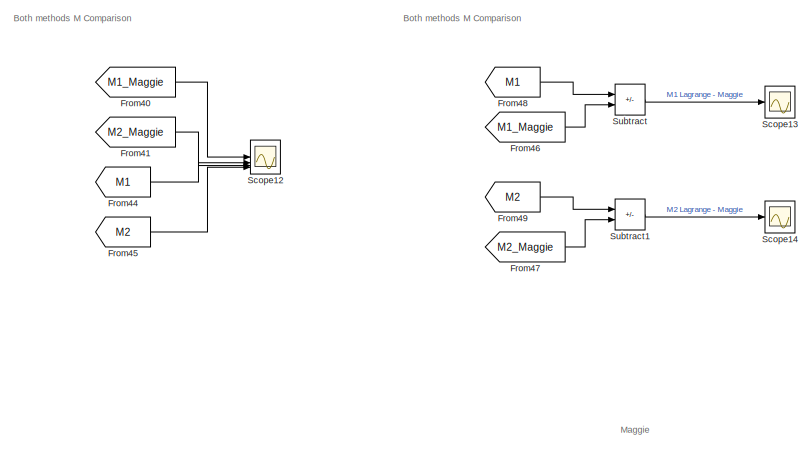
[diagram: root canvas - part 1/4, top right region]
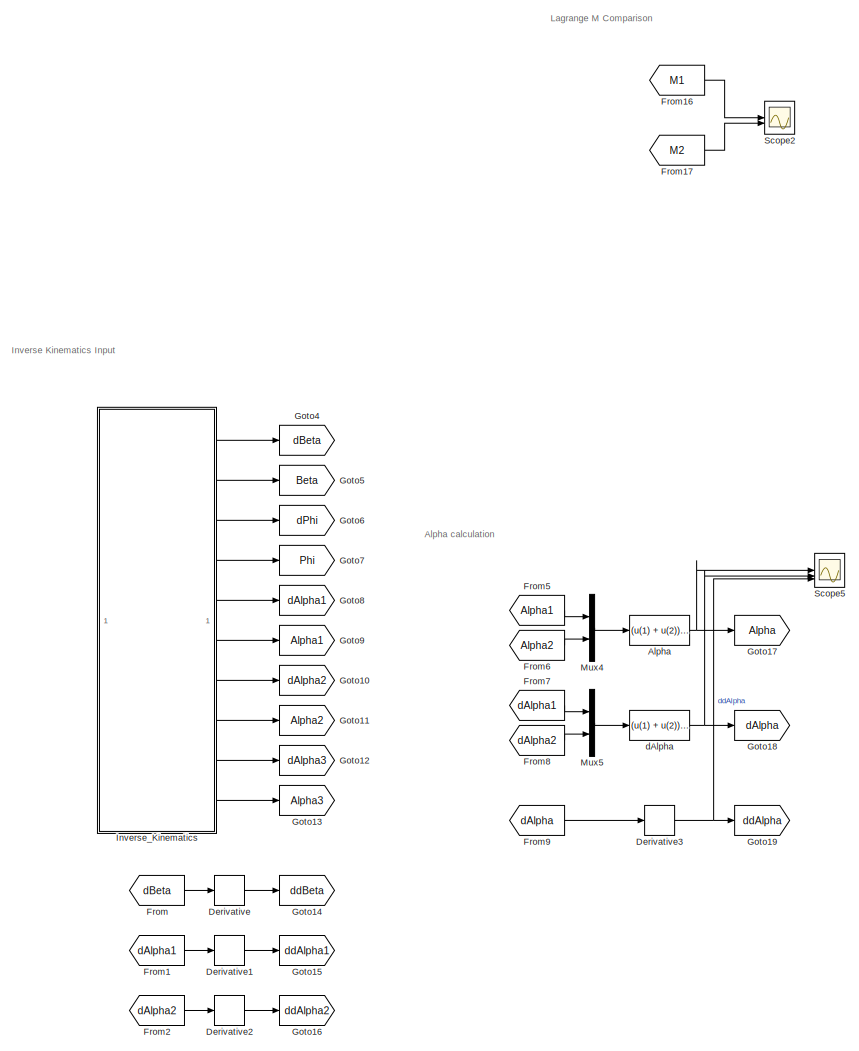
[diagram: root canvas - part 2/4, left side, full height]
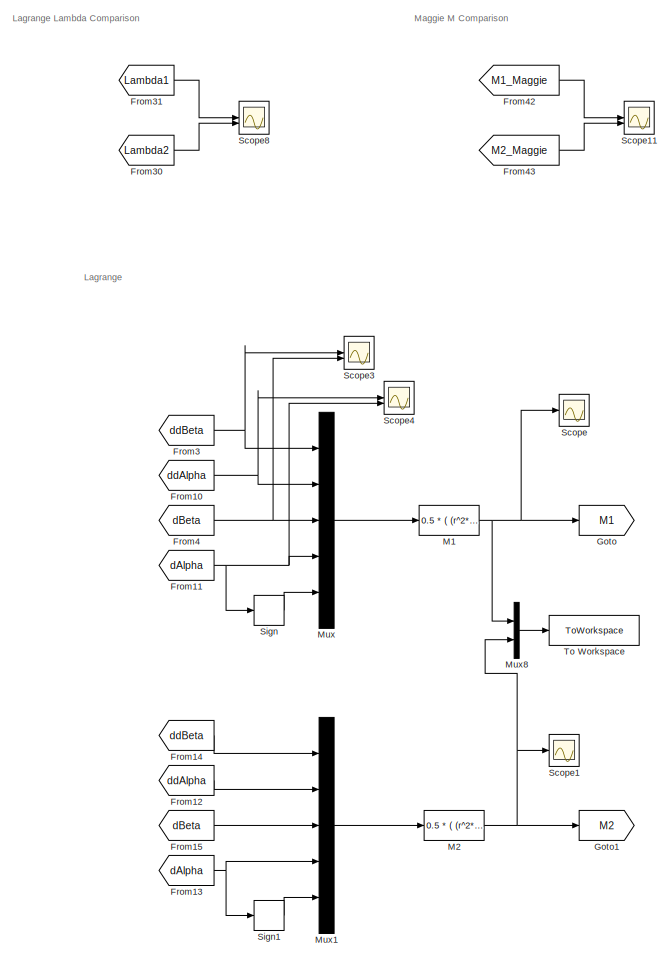
[diagram: root canvas - part 3/4, center side, full height]
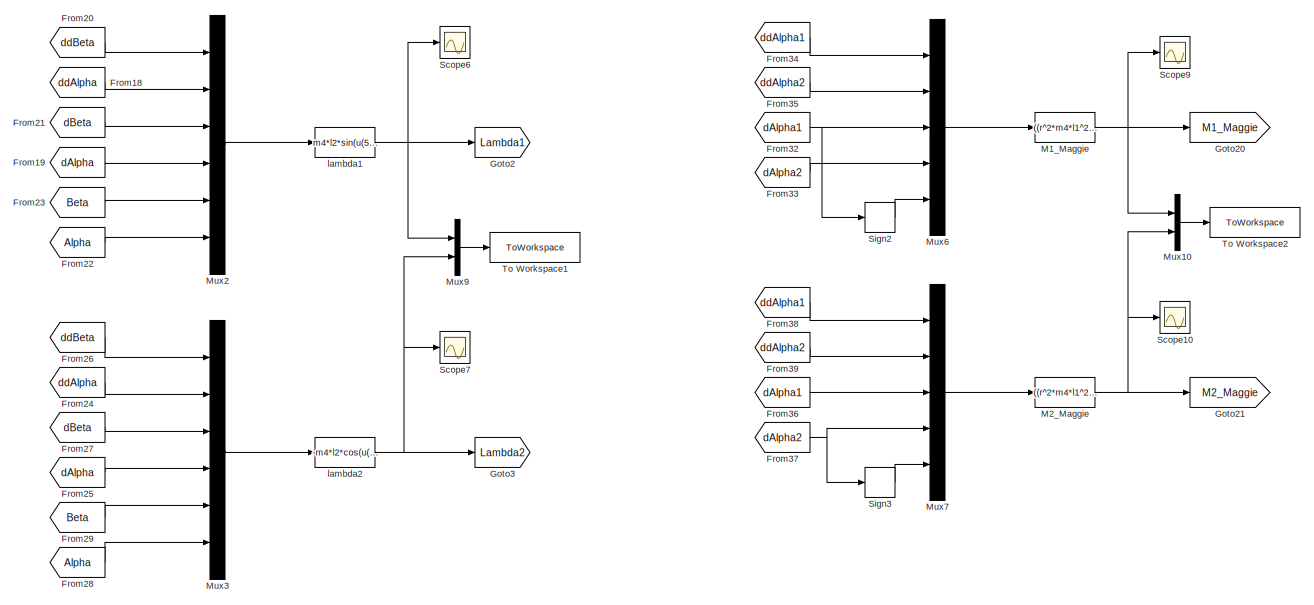
[diagram: root canvas - part 4/4, bottom right region]
MODEL slx_114e9fb8801b
KIND model
CONFIG AbsTol = auto
CONFIG EnableMultiTasking = off
CONFIG FixedStep = dt
CONFIG MaxStep = auto
CONFIG MinStep = auto
CONFIG RelTol = 1e-3
CONFIG SampleTimeConstraint = Unconstrained
CONFIG SolverName = FixedStepAuto
CONFIG StartTime = 0.0
CONFIG StopTime = tsim
BLOCK [Fcn] Alpha
  Expr = (u(1) + u(2)) / 2
BLOCK [Derivative] Derivative
BLOCK [Derivative] Derivative1
BLOCK [Derivative] Derivative2
BLOCK [Derivative] Derivative3
BLOCK [From] From
  GotoTag = dBeta
BLOCK [From] From1
  GotoTag = dAlpha1
BLOCK [From] From10
  GotoTag = ddAlpha
BLOCK [From] From11
  GotoTag = dAlpha
BLOCK [From] From12
  GotoTag = ddAlpha
BLOCK [From] From13
  GotoTag = dAlpha
BLOCK [From] From14
  GotoTag = ddBeta
BLOCK [From] From15
  GotoTag = dBeta
BLOCK [From] From16
  GotoTag = M1
BLOCK [From] From17
  GotoTag = M2
BLOCK [From] From18
  GotoTag = ddAlpha
BLOCK [From] From19
  GotoTag = dAlpha
BLOCK [From] From2
  GotoTag = dAlpha2
BLOCK [From] From20
  GotoTag = ddBeta
BLOCK [From] From21
  GotoTag = dBeta
BLOCK [From] From22
  GotoTag = Alpha
BLOCK [From] From23
  GotoTag = Beta
BLOCK [From] From24
  GotoTag = ddAlpha
BLOCK [From] From25
  GotoTag = dAlpha
BLOCK [From] From26
  GotoTag = ddBeta
BLOCK [From] From27
  GotoTag = dBeta
BLOCK [From] From28
  GotoTag = Alpha
BLOCK [From] From29
  GotoTag = Beta
BLOCK [From] From3
  GotoTag = ddBeta
BLOCK [From] From30
  GotoTag = Lambda2
BLOCK [From] From31
  GotoTag = Lambda1
BLOCK [From] From32
  GotoTag = dAlpha1
BLOCK [From] From33
  GotoTag = dAlpha2
BLOCK [From] From34
  GotoTag = ddAlpha1
BLOCK [From] From35
  GotoTag = ddAlpha2
BLOCK [From] From36
  GotoTag = dAlpha1
BLOCK [From] From37
  GotoTag = dAlpha2
BLOCK [From] From38
  GotoTag = ddAlpha1
BLOCK [From] From39
  GotoTag = ddAlpha2
BLOCK [From] From4
  GotoTag = dBeta
BLOCK [From] From40
  GotoTag = M1_Maggie
BLOCK [From] From41
  GotoTag = M2_Maggie
BLOCK [From] From42
  GotoTag = M1_Maggie
BLOCK [From] From43
  GotoTag = M2_Maggie
BLOCK [From] From44
  GotoTag = M1
BLOCK [From] From45
  GotoTag = M2
BLOCK [From] From46
  GotoTag = M1_Maggie
BLOCK [From] From47
  GotoTag = M2_Maggie
BLOCK [From] From48
  GotoTag = M1
BLOCK [From] From49
  GotoTag = M2
BLOCK [From] From5
  GotoTag = Alpha1
BLOCK [From] From6
  GotoTag = Alpha2
BLOCK [From] From7
  GotoTag = dAlpha1
BLOCK [From] From8
  GotoTag = dAlpha2
BLOCK [From] From9
  GotoTag = dAlpha
BLOCK [Goto] Goto
  GotoTag = M1
BLOCK [Goto] Goto1
  GotoTag = M2
BLOCK [Goto] Goto10
  GotoTag = dAlpha2
BLOCK [Goto] Goto11
  GotoTag = Alpha2
BLOCK [Goto] Goto12
  GotoTag = dAlpha3
BLOCK [Goto] Goto13
  GotoTag = Alpha3
BLOCK [Goto] Goto14
  GotoTag = ddBeta
BLOCK [Goto] Goto15
  GotoTag = ddAlpha1
BLOCK [Goto] Goto16
  GotoTag = ddAlpha2
BLOCK [Goto] Goto17
  GotoTag = Alpha
BLOCK [Goto] Goto18
  GotoTag = dAlpha
BLOCK [Goto] Goto19
  GotoTag = ddAlpha
BLOCK [Goto] Goto2
  GotoTag = Lambda1
BLOCK [Goto] Goto20
  GotoTag = M1_Maggie
BLOCK [Goto] Goto21
  GotoTag = M2_Maggie
BLOCK [Goto] Goto3
  GotoTag = Lambda2
BLOCK [Goto] Goto4
  GotoTag = dBeta
BLOCK [Goto] Goto5
  GotoTag = Beta
BLOCK [Goto] Goto6
  GotoTag = dPhi
BLOCK [Goto] Goto7
  GotoTag = Phi
BLOCK [Goto] Goto8
  GotoTag = dAlpha1
BLOCK [Goto] Goto9
  GotoTag = Alpha1
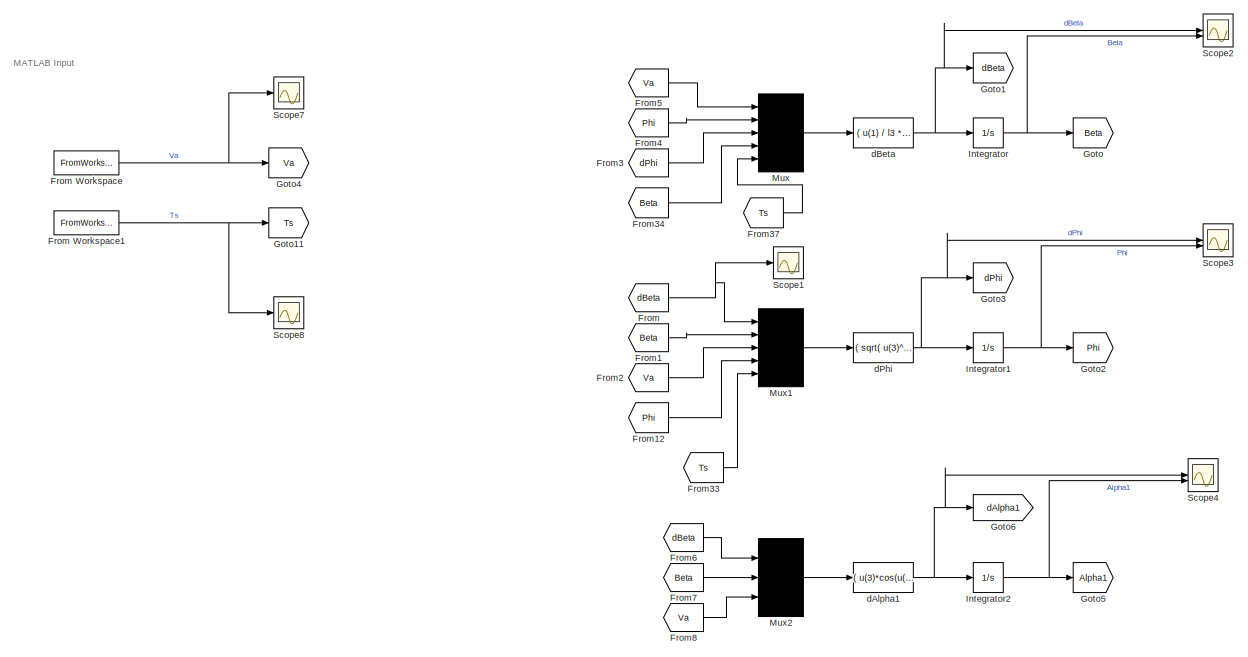
[diagram: Inverse_Kinematics - part 1/2, top left region]
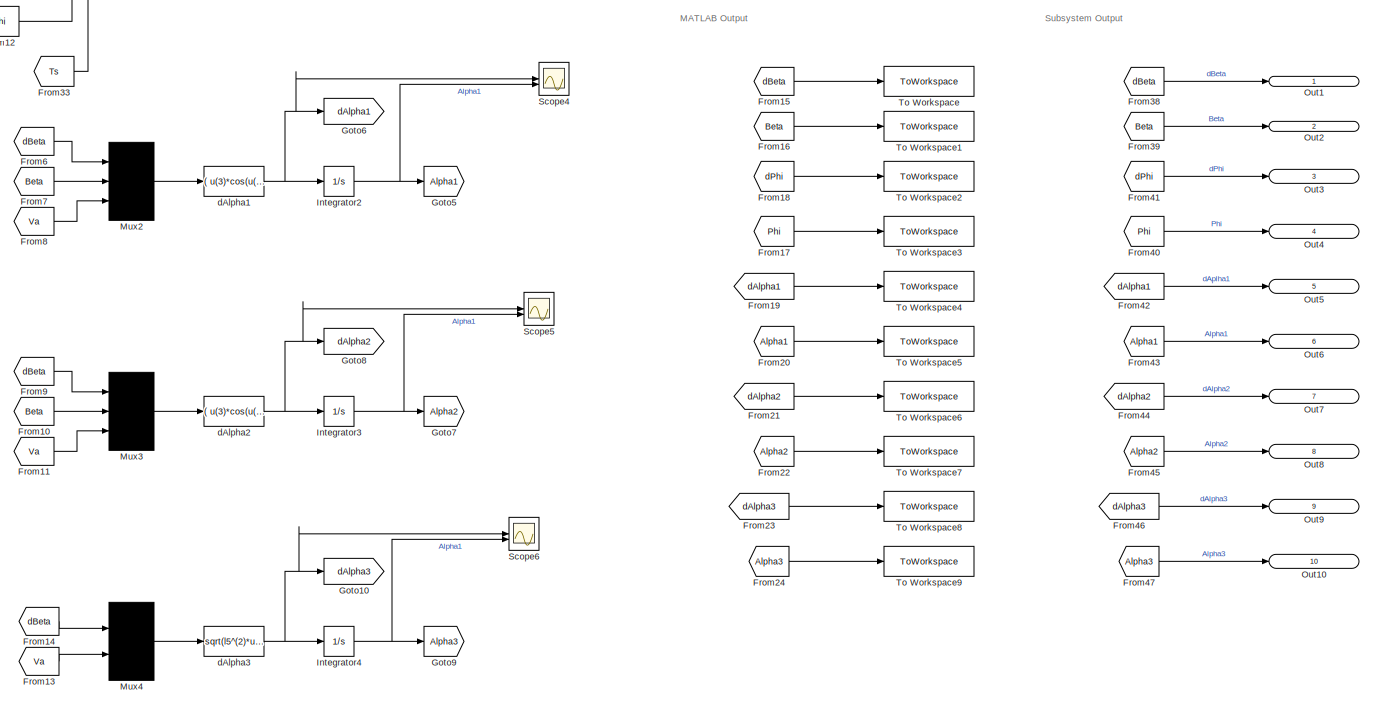
[diagram: Inverse_Kinematics - part 2/2, bottom center region]
BLOCK [SubSystem] Inverse_Kinematics
BLOCK [From] Inverse_Kinematics/From
  GotoTag = dBeta
BLOCK [FromWorkspace] Inverse_Kinematics/From Workspace
  VariableName = Va
BLOCK [FromWorkspace] Inverse_Kinematics/From Workspace1
  VariableName = Ts
BLOCK [From] Inverse_Kinematics/From1
  GotoTag = Beta
BLOCK [From] Inverse_Kinematics/From10
  GotoTag = Beta
BLOCK [From] Inverse_Kinematics/From11
  GotoTag = Va
BLOCK [From] Inverse_Kinematics/From12
  GotoTag = Phi
BLOCK [From] Inverse_Kinematics/From13
  GotoTag = Va
BLOCK [From] Inverse_Kinematics/From14
  GotoTag = dBeta
BLOCK [From] Inverse_Kinematics/From15
  Commented = on
  GotoTag = dBeta
BLOCK [From] Inverse_Kinematics/From16
  Commented = on
  GotoTag = Beta
BLOCK [From] Inverse_Kinematics/From17
  Commented = on
  GotoTag = Phi
BLOCK [From] Inverse_Kinematics/From18
  Commented = on
  GotoTag = dPhi
BLOCK [From] Inverse_Kinematics/From19
  Commented = on
  GotoTag = dAlpha1
BLOCK [From] Inverse_Kinematics/From2
  GotoTag = Va
BLOCK [From] Inverse_Kinematics/From20
  Commented = on
  GotoTag = Alpha1
BLOCK [From] Inverse_Kinematics/From21
  Commented = on
  GotoTag = dAlpha2
BLOCK [From] Inverse_Kinematics/From22
  Commented = on
  GotoTag = Alpha2
BLOCK [From] Inverse_Kinematics/From23
  Commented = on
  GotoTag = dAlpha3
BLOCK [From] Inverse_Kinematics/From24
  Commented = on
  GotoTag = Alpha3
BLOCK [From] Inverse_Kinematics/From3
  GotoTag = dPhi
BLOCK [From] Inverse_Kinematics/From33
  GotoTag = Ts
BLOCK [From] Inverse_Kinematics/From34
  GotoTag = Beta
BLOCK [From] Inverse_Kinematics/From37
  GotoTag = Ts
BLOCK [From] Inverse_Kinematics/From38
  GotoTag = dBeta
BLOCK [From] Inverse_Kinematics/From39
  GotoTag = Beta
BLOCK [From] Inverse_Kinematics/From4
  GotoTag = Phi
BLOCK [From] Inverse_Kinematics/From40
  GotoTag = Phi
BLOCK [From] Inverse_Kinematics/From41
  GotoTag = dPhi
BLOCK [From] Inverse_Kinematics/From42
  GotoTag = dAlpha1
BLOCK [From] Inverse_Kinematics/From43
  GotoTag = Alpha1
BLOCK [From] Inverse_Kinematics/From44
  GotoTag = dAlpha2
BLOCK [From] Inverse_Kinematics/From45
  GotoTag = Alpha2
BLOCK [From] Inverse_Kinematics/From46
  GotoTag = dAlpha3
BLOCK [From] Inverse_Kinematics/From47
  GotoTag = Alpha3
BLOCK [From] Inverse_Kinematics/From5
  GotoTag = Va
BLOCK [From] Inverse_Kinematics/From6
  GotoTag = dBeta
BLOCK [From] Inverse_Kinematics/From7
  GotoTag = Beta
BLOCK [From] Inverse_Kinematics/From8
  GotoTag = Va
BLOCK [From] Inverse_Kinematics/From9
  GotoTag = dBeta
BLOCK [Goto] Inverse_Kinematics/Goto
  GotoTag = Beta
BLOCK [Goto] Inverse_Kinematics/Goto1
  GotoTag = dBeta
BLOCK [Goto] Inverse_Kinematics/Goto10
  GotoTag = dAlpha3
BLOCK [Goto] Inverse_Kinematics/Goto11
  GotoTag = Ts
BLOCK [Goto] Inverse_Kinematics/Goto2
  GotoTag = Phi
BLOCK [Goto] Inverse_Kinematics/Goto3
  GotoTag = dPhi
BLOCK [Goto] Inverse_Kinematics/Goto4
  GotoTag = Va
BLOCK [Goto] Inverse_Kinematics/Goto5
  GotoTag = Alpha1
BLOCK [Goto] Inverse_Kinematics/Goto6
  GotoTag = dAlpha1
BLOCK [Goto] Inverse_Kinematics/Goto7
  GotoTag = Alpha2
BLOCK [Goto] Inverse_Kinematics/Goto8
  GotoTag = dAlpha2
BLOCK [Goto] Inverse_Kinematics/Goto9
  GotoTag = Alpha3
BLOCK [Integrator] Inverse_Kinematics/Integrator
BLOCK [Integrator] Inverse_Kinematics/Integrator1
BLOCK [Integrator] Inverse_Kinematics/Integrator2
BLOCK [Integrator] Inverse_Kinematics/Integrator3
BLOCK [Integrator] Inverse_Kinematics/Integrator4
BLOCK [Mux] Inverse_Kinematics/Mux
  DisplayOption = signals
  Inputs = 5
BLOCK [Mux] Inverse_Kinematics/Mux1
  DisplayOption = signals
  Inputs = 5
BLOCK [Mux] Inverse_Kinematics/Mux2
  DisplayOption = signals
  Inputs = 3
BLOCK [Mux] Inverse_Kinematics/Mux3
  DisplayOption = signals
  Inputs = 3
BLOCK [Mux] Inverse_Kinematics/Mux4
  DisplayOption = signals
  Inputs = 2
BLOCK [Outport] Inverse_Kinematics/Out1
  IconDisplay = Port number and signal name
BLOCK [Outport] Inverse_Kinematics/Out10
  IconDisplay = Port number and signal name
  Port = 10
BLOCK [Outport] Inverse_Kinematics/Out2
  IconDisplay = Port number and signal name
  Port = 2
BLOCK [Outport] Inverse_Kinematics/Out3
  IconDisplay = Port number and signal name
  Port = 3
BLOCK [Outport] Inverse_Kinematics/Out4
  IconDisplay = Port number and signal name
  Port = 4
BLOCK [Outport] Inverse_Kinematics/Out5
  IconDisplay = Port number and signal name
  Port = 5
BLOCK [Outport] Inverse_Kinematics/Out6
  IconDisplay = Port number and signal name
  Port = 6
BLOCK [Outport] Inverse_Kinematics/Out7
  IconDisplay = Port number and signal name
  Port = 7
BLOCK [Outport] Inverse_Kinematics/Out8
  IconDisplay = Port number and signal name
  Port = 8
BLOCK [Outport] Inverse_Kinematics/Out9
  IconDisplay = Port number and signal name
  Port = 9
BLOCK [Scope] Inverse_Kinematics/Scope1
  Floating = off
  NumInputPorts = 1
  ScopeSpecificationString = Simulink.scopes.TimeScopeBlockCfg('CurrentConfiguration', extmgr.ConfigurationSet(extmgr.Configuration('Core','General UI',true),extmgr.Configuration('Core','Source UI',true),extmgr.Configuration('Sources','WiredSimulink',true,'DataLoggingVariableName','ScopeData2'),extmgr.Configuration('Visuals','Time Domain',true,'SerializedDisplays',{struct('MinYLimReal','-10.68908','MaxYLimReal','1.55845','YLa...<+1459ch>
BLOCK [Scope] Inverse_Kinematics/Scope2
  Floating = off
  NumInputPorts = 2
  ScopeSpecificationString = Simulink.scopes.TimeScopeBlockCfg('CurrentConfiguration', extmgr.ConfigurationSet(extmgr.Configuration('Core','General UI',true),extmgr.Configuration('Core','Source UI',true),extmgr.Configuration('Sources','WiredSimulink',true,'DataLoggingVariableName','ScopeData6'),extmgr.Configuration('Visuals','Time Domain',true,'SerializedDisplays',{struct('MinYLimReal','-0.06252','MaxYLimReal','0.56264','YLab...<+1847ch>
BLOCK [Scope] Inverse_Kinematics/Scope3
  Floating = off
  NumInputPorts = 2
  ScopeSpecificationString = Simulink.scopes.TimeScopeBlockCfg('CurrentConfiguration', extmgr.ConfigurationSet(extmgr.Configuration('Core','General UI',true),extmgr.Configuration('Core','Source UI',true),extmgr.Configuration('Sources','WiredSimulink',true,'DataLoggingVariableName','ScopeData7'),extmgr.Configuration('Visuals','Time Domain',true,'SerializedDisplays',{struct('MinYLimReal','-0.06252','MaxYLimReal','0.56264','YLab...<+1845ch>
BLOCK [Scope] Inverse_Kinematics/Scope4
  Floating = off
  NumInputPorts = 2
  ScopeSpecificationString = Simulink.scopes.TimeScopeBlockCfg('CurrentConfiguration', extmgr.ConfigurationSet(extmgr.Configuration('Core','General UI',true),extmgr.Configuration('Core','Source UI',true),extmgr.Configuration('Sources','WiredSimulink',true,'DataLoggingVariableName','ScopeData8'),extmgr.Configuration('Visuals','Time Domain',true,'SerializedDisplays',{struct('MinYLimReal','-5.42655','MaxYLimReal','48.83892','YLa...<+1907ch>
BLOCK [Scope] Inverse_Kinematics/Scope5
  Floating = off
  NumInputPorts = 2
  ScopeSpecificationString = Simulink.scopes.TimeScopeBlockCfg('CurrentConfiguration', extmgr.ConfigurationSet(extmgr.Configuration('Core','General UI',true),extmgr.Configuration('Core','Source UI',true),extmgr.Configuration('Sources','WiredSimulink',true,'DataLoggingVariableName','ScopeData9'),extmgr.Configuration('Visuals','Time Domain',true,'SerializedDisplays',{struct('MinYLimReal','-5.17951','MaxYLimReal','46.61563','YLa...<+1894ch>
BLOCK [Scope] Inverse_Kinematics/Scope6
  Floating = off
  NumInputPorts = 2
  ScopeSpecificationString = Simulink.scopes.TimeScopeBlockCfg('CurrentConfiguration', extmgr.ConfigurationSet(extmgr.Configuration('Core','General UI',true),extmgr.Configuration('Core','Source UI',true),extmgr.Configuration('Sources','WiredSimulink',true,'DataLoggingVariableName','ScopeData10'),extmgr.Configuration('Visuals','Time Domain',true,'SerializedDisplays',{struct('MinYLimReal','-12.50139','MaxYLimReal','112.51252','...<+1862ch>
BLOCK [Scope] Inverse_Kinematics/Scope7
  Floating = off
  NumInputPorts = 1
  ScopeSpecificationString = Simulink.scopes.TimeScopeBlockCfg('CurrentConfiguration', extmgr.ConfigurationSet(extmgr.Configuration('Core','General UI',true),extmgr.Configuration('Core','Source UI',true),extmgr.Configuration('Sources','WiredSimulink',true,'DataLoggingVariableName','ScopeData8'),extmgr.Configuration('Visuals','Time Domain',true,'SerializedDisplays',{struct('MinYLimReal','-0.0625','MaxYLimReal','0.5625','YLabel...<+1843ch>
BLOCK [Scope] Inverse_Kinematics/Scope8
  Floating = off
  NumInputPorts = 1
  ScopeSpecificationString = Simulink.scopes.TimeScopeBlockCfg('CurrentConfiguration', extmgr.ConfigurationSet(extmgr.Configuration('Core','General UI',true),extmgr.Configuration('Core','Source UI',true),extmgr.Configuration('Sources','WiredSimulink',true,'DataLoggingVariableName','ScopeData9'),extmgr.Configuration('Visuals','Time Domain',true,'SerializedDisplays',{struct('MinYLimReal','-0.125','MaxYLimReal','1.125','YLabelRe...<+1767ch>
BLOCK [ToWorkspace] Inverse_Kinematics/To Workspace
  Commented = on
  FixptAsFi = on
  MaxDataPoints = inf
  SampleTime = -1
  SaveFormat = Timeseries
  VariableName = dBeta
BLOCK [ToWorkspace] Inverse_Kinematics/To Workspace1
  Commented = on
  FixptAsFi = on
  MaxDataPoints = inf
  SampleTime = -1
  SaveFormat = Timeseries
  VariableName = Beta
BLOCK [ToWorkspace] Inverse_Kinematics/To Workspace2
  Commented = on
  FixptAsFi = on
  MaxDataPoints = inf
  SampleTime = -1
  SaveFormat = Timeseries
  VariableName = dPhi
BLOCK [ToWorkspace] Inverse_Kinematics/To Workspace3
  Commented = on
  FixptAsFi = on
  MaxDataPoints = inf
  SampleTime = -1
  SaveFormat = Timeseries
  VariableName = Phi
BLOCK [ToWorkspace] Inverse_Kinematics/To Workspace4
  Commented = on
  FixptAsFi = on
  MaxDataPoints = inf
  SampleTime = -1
  SaveFormat = Timeseries
  VariableName = dAlpha1
BLOCK [ToWorkspace] Inverse_Kinematics/To Workspace5
  Commented = on
  FixptAsFi = on
  MaxDataPoints = inf
  SampleTime = -1
  SaveFormat = Timeseries
  VariableName = Alpha1
BLOCK [ToWorkspace] Inverse_Kinematics/To Workspace6
  Commented = on
  FixptAsFi = on
  MaxDataPoints = inf
  SampleTime = -1
  SaveFormat = Timeseries
  VariableName = dAlpha2
BLOCK [ToWorkspace] Inverse_Kinematics/To Workspace7
  Commented = on
  FixptAsFi = on
  MaxDataPoints = inf
  SampleTime = -1
  SaveFormat = Timeseries
  VariableName = Alpha2
BLOCK [ToWorkspace] Inverse_Kinematics/To Workspace8
  Commented = on
  FixptAsFi = on
  MaxDataPoints = inf
  SampleTime = -1
  SaveFormat = Timeseries
  VariableName = dAlpha3
BLOCK [ToWorkspace] Inverse_Kinematics/To Workspace9
  Commented = on
  FixptAsFi = on
  MaxDataPoints = inf
  SampleTime = -1
  SaveFormat = Timeseries
  VariableName = Alpha3
BLOCK [Fcn] Inverse_Kinematics/dAlpha1
  Expr = ( u(3)*cos(u(2)) + l1*u(1)*cos(u(2)) ) / ( r1*cos(u(2)) )
BLOCK [Fcn] Inverse_Kinematics/dAlpha2
  Expr = ( u(3)*cos(u(2)) - l1*u(1)*cos(u(2)) ) / ( r2*cos(u(2)) )
BLOCK [Fcn] Inverse_Kinematics/dAlpha3
  Expr = sqrt(l5^(2)*u(1)^(2) + u(2)^(2) ) / (r3)
BLOCK [Fcn] Inverse_Kinematics/dBeta
  Expr = ( u(1) / l3 * tan( u(2) - u(4) ) )
BLOCK [Fcn] Inverse_Kinematics/dPhi
  Expr = ( sqrt( u(3)^2 + l3^2 * u(1)^2 ) / R )  * u(5)
BLOCK [Fcn] M1
  Expr = 0.5 * ( (r^2*m4 + 2*r^2*m1 +2*Iz1)*u(2) + m4*l2*u(3)^2 + ( (2*Iz1*h^2 + 2*m1*l1^2 + 2*Ix1 + Iz4 + m4*l2^2)*u(1) - m4*l2*r*u(3)*u(4) )/h ) + N1*f1*u(5)
BLOCK [Fcn] M1_Maggie
  Expr = ((r^2*m4*l1^2 + 4*r^2*m1*l1^2 + 2*r^2*Ix1 + 4*Iz1*l1^2 + r^2*Iz4 + r^2*m4*l2^2) / (4*l1^2))*u(1) + ((r^2*m4*l1^2 - r^2*m4*l2^2 - 2*r^2*Ix1 - r^2*Iz4) / (4*l1^2))*u(2) - ((r^3*m4*l2) / (4*l1^2))*u(3)*u(4) + ((r^3*m4*l2) / (4*l1^2))*u(4)^2 + N1*f1*u(5)
BLOCK [Fcn] M2
  Expr = 0.5 * ( (r^2*m4 + 2*r^2*m1 +2*Iz1)*u(2) + m4*l2*u(3)^2 - ( (2*Iz1*h^2 + 2*m1*l1^2 + 2*Ix1 + Iz4 + m4*l2^2)*u(1) - m4*l2*r*u(3)*u(4) )/h ) + N2*f2*u(5)
BLOCK [Fcn] M2_Maggie
  Expr = ((r^2*m4*l1^2 + 4*r^2*m1*l1^2 + 2*r^2*Ix1 + 4*Iz1*l1^2 + r^2*Iz4 + r^2*m4*l2^2) / (4*l1^2))*u(2) + ((r^2*m4*l1^2 - r^2*m4*l2^2 - 2*r^2*Ix1 - r^2*Iz4) / (4*l1^2))*u(1) - ((r^3*m4*l2) / (4*l1^2))*u(3)*u(4) + ((r^3*m4*l2) / (4*l1^2))*u(3)^2 + N2*f2*u(5)
BLOCK [Mux] Mux
  DisplayOption = bar
  Inputs = 5
BLOCK [Mux] Mux1
  DisplayOption = bar
  Inputs = 5
BLOCK [Mux] Mux10
  DisplayOption = bar
  Inputs = 2
BLOCK [Mux] Mux2
  DisplayOption = bar
  Inputs = 6
BLOCK [Mux] Mux3
  DisplayOption = bar
  Inputs = 6
BLOCK [Mux] Mux4
  DisplayOption = bar
  Inputs = 2
BLOCK [Mux] Mux5
  DisplayOption = bar
  Inputs = 2
BLOCK [Mux] Mux6
  DisplayOption = bar
  Inputs = 5
BLOCK [Mux] Mux7
  DisplayOption = bar
  Inputs = 5
BLOCK [Mux] Mux8
  DisplayOption = bar
  Inputs = 2
BLOCK [Mux] Mux9
  DisplayOption = bar
  Inputs = 2
BLOCK [Scope] Scope
  Floating = off
  NumInputPorts = 1
  ScopeSpecificationString = Simulink.scopes.TimeScopeBlockCfg('CurrentConfiguration', extmgr.ConfigurationSet(extmgr.Configuration('Core','General UI',true),extmgr.Configuration('Core','Source UI',true),extmgr.Configuration('Sources','WiredSimulink',true,'DataLoggingVariableName','ScopeData1'),extmgr.Configuration('Visuals','Time Domain',true,'SerializedDisplays',{struct('MinYLimReal','-0.08977','MaxYLimReal','0.80187','YLab...<+1505ch>
BLOCK [Scope] Scope1
  Floating = off
  NumInputPorts = 1
  ScopeSpecificationString = Simulink.scopes.TimeScopeBlockCfg('CurrentConfiguration', extmgr.ConfigurationSet(extmgr.Configuration('Core','General UI',true),extmgr.Configuration('Core','Source UI',true),extmgr.Configuration('Sources','WiredSimulink',true,'DataLoggingVariableName','ScopeData2'),extmgr.Configuration('Visuals','Time Domain',true,'SerializedDisplays',{struct('MinYLimReal','-0.08977','MaxYLimReal','0.80187','YLab...<+1492ch>
BLOCK [Scope] Scope10
  Floating = off
  NumInputPorts = 1
  ScopeSpecificationString = Simulink.scopes.TimeScopeBlockCfg('CurrentConfiguration', extmgr.ConfigurationSet(extmgr.Configuration('Core','General UI',true),extmgr.Configuration('Core','Source UI',true),extmgr.Configuration('Sources','WiredSimulink',true,'DataLoggingVariableName','ScopeData16'),extmgr.Configuration('Visuals','Time Domain',true,'SerializedDisplays',{struct('MinYLimReal','-0.08977','MaxYLimReal','0.80187','YLa...<+1484ch>
BLOCK [Scope] Scope11
  Floating = off
  NumInputPorts = 2
  ScopeSpecificationString = Simulink.scopes.TimeScopeBlockCfg('CurrentConfiguration', extmgr.ConfigurationSet(extmgr.Configuration('Core','General UI',true),extmgr.Configuration('Core','Source UI',true),extmgr.Configuration('Sources','WiredSimulink',true,'DataLoggingVariableName','ScopeData17'),extmgr.Configuration('Visuals','Time Domain',true,'SerializedDisplays',{struct('MinYLimReal','-0.08977','MaxYLimReal','0.80187','YLa...<+1555ch>
BLOCK [Scope] Scope12
  Floating = off
  NumInputPorts = 4
  ScopeSpecificationString = Simulink.scopes.TimeScopeBlockCfg('CurrentConfiguration', extmgr.ConfigurationSet(extmgr.Configuration('Core','General UI',true),extmgr.Configuration('Core','Source UI',true),extmgr.Configuration('Sources','WiredSimulink',true,'DataLoggingVariableName','ScopeData18'),extmgr.Configuration('Visuals','Time Domain',true,'SerializedDisplays',{struct('MinYLimReal','0.17528','MaxYLimReal','0.74991','YLab...<+1549ch>
BLOCK [Scope] Scope13
  Floating = off
  NumInputPorts = 1
  ScopeSpecificationString = Simulink.scopes.TimeScopeBlockCfg('CurrentConfiguration', extmgr.ConfigurationSet(extmgr.Configuration('Core','General UI',true),extmgr.Configuration('Core','Source UI',true),extmgr.Configuration('Sources','WiredSimulink',true,'DataLoggingVariableName','ScopeData1'),extmgr.Configuration('Visuals','Time Domain',true,'SerializedDisplays',{struct('MinYLimReal','-0.00063','MaxYLimReal','0.00569','YLab...<+1508ch>
BLOCK [Scope] Scope14
  Floating = off
  NumInputPorts = 1
  ScopeSpecificationString = Simulink.scopes.TimeScopeBlockCfg('CurrentConfiguration', extmgr.ConfigurationSet(extmgr.Configuration('Core','General UI',true),extmgr.Configuration('Core','Source UI',true),extmgr.Configuration('Sources','WiredSimulink',true,'DataLoggingVariableName','ScopeData2'),extmgr.Configuration('Visuals','Time Domain',true,'SerializedDisplays',{struct('MinYLimReal','-0.00063','MaxYLimReal','0.00569','YLab...<+1466ch>
BLOCK [Scope] Scope2
  Floating = off
  NumInputPorts = 2
  ScopeSpecificationString = Simulink.scopes.TimeScopeBlockCfg('CurrentConfiguration', extmgr.ConfigurationSet(extmgr.Configuration('Core','General UI',true),extmgr.Configuration('Core','Source UI',true),extmgr.Configuration('Sources','WiredSimulink',true,'DataLoggingVariableName','ScopeData3'),extmgr.Configuration('Visuals','Time Domain',true,'SerializedDisplays',{struct('MinYLimReal','-0.08977','MaxYLimReal','0.80187','YLab...<+1520ch>
BLOCK [Scope] Scope3
  Floating = off
  NumInputPorts = 2
  ScopeSpecificationString = Simulink.scopes.TimeScopeBlockCfg('CurrentConfiguration', extmgr.ConfigurationSet(extmgr.Configuration('Core','General UI',true),extmgr.Configuration('Core','Source UI',true),extmgr.Configuration('Sources','WiredSimulink',true,'DataLoggingVariableName','ScopeData4'),extmgr.Configuration('Visuals','Time Domain',true,'SerializedDisplays',{struct('MinYLimReal','-1.47858','MaxYLimReal','1.47763','YLab...<+1496ch>
BLOCK [Scope] Scope4
  Floating = off
  NumInputPorts = 2
  ScopeSpecificationString = Simulink.scopes.TimeScopeBlockCfg('CurrentConfiguration', extmgr.ConfigurationSet(extmgr.Configuration('Core','General UI',true),extmgr.Configuration('Core','Source UI',true),extmgr.Configuration('Sources','WiredSimulink',true,'DataLoggingVariableName','ScopeData5'),extmgr.Configuration('Visuals','Time Domain',true,'SerializedDisplays',{struct('MinYLimReal','-4.16667','MaxYLimReal','7.19697','YLab...<+1493ch>
BLOCK [Scope] Scope5
  Floating = off
  NumInputPorts = 3
  ScopeSpecificationString = Simulink.scopes.TimeScopeBlockCfg('CurrentConfiguration', extmgr.ConfigurationSet(extmgr.Configuration('Core','General UI',true),extmgr.Configuration('Core','Source UI',true),extmgr.Configuration('Sources','WiredSimulink',true,'DataLoggingVariableName','ScopeData11'),extmgr.Configuration('Visuals','Time Domain',true,'SerializedDisplays',{struct('MinYLimReal','-8.71212','MaxYLimReal','48.10606','YL...<+1568ch>
BLOCK [Scope] Scope6
  Floating = off
  NumInputPorts = 1
  ScopeSpecificationString = Simulink.scopes.TimeScopeBlockCfg('CurrentConfiguration', extmgr.ConfigurationSet(extmgr.Configuration('Core','General UI',true),extmgr.Configuration('Core','Source UI',true),extmgr.Configuration('Sources','WiredSimulink',true,'DataLoggingVariableName','ScopeData12'),extmgr.Configuration('Visuals','Time Domain',true,'SerializedDisplays',{struct('MinYLimReal','-2.41084','MaxYLimReal','2.6762','YLab...<+1452ch>
BLOCK [Scope] Scope7
  Floating = off
  NumInputPorts = 1
  ScopeSpecificationString = Simulink.scopes.TimeScopeBlockCfg('CurrentConfiguration', extmgr.ConfigurationSet(extmgr.Configuration('Core','General UI',true),extmgr.Configuration('Core','Source UI',true),extmgr.Configuration('Sources','WiredSimulink',true,'DataLoggingVariableName','ScopeData13'),extmgr.Configuration('Visuals','Time Domain',true,'SerializedDisplays',{struct('MinYLimReal','-1.30147','MaxYLimReal','1.3193','YLab...<+1452ch>
BLOCK [Scope] Scope8
  Floating = off
  NumInputPorts = 2
  ScopeSpecificationString = Simulink.scopes.TimeScopeBlockCfg('CurrentConfiguration', extmgr.ConfigurationSet(extmgr.Configuration('Core','General UI',true),extmgr.Configuration('Core','Source UI',true),extmgr.Configuration('Sources','WiredSimulink',true,'DataLoggingVariableName','ScopeData14'),extmgr.Configuration('Visuals','Time Domain',true,'SerializedDisplays',{struct('MinYLimReal','-2.41084','MaxYLimReal','2.6762','YLab...<+1504ch>
BLOCK [Scope] Scope9
  Floating = off
  NumInputPorts = 1
  ScopeSpecificationString = Simulink.scopes.TimeScopeBlockCfg('CurrentConfiguration', extmgr.ConfigurationSet(extmgr.Configuration('Core','General UI',true),extmgr.Configuration('Core','Source UI',true),extmgr.Configuration('Sources','WiredSimulink',true,'DataLoggingVariableName','ScopeData15'),extmgr.Configuration('Visuals','Time Domain',true,'SerializedDisplays',{struct('MinYLimReal','-0.08977','MaxYLimReal','0.80187','YLa...<+1484ch>
BLOCK [Signum] Sign
BLOCK [Signum] Sign1
BLOCK [Signum] Sign2
BLOCK [Signum] Sign3
BLOCK [Sum] Subtract
  IconShape = rectangular
  Inputs = +-
BLOCK [Sum] Subtract1
  IconShape = rectangular
  Inputs = +-
BLOCK [ToWorkspace] To Workspace
  FixptAsFi = on
  MaxDataPoints = inf
  SampleTime = -1
  SaveFormat = Timeseries
  VariableName = M1M2
BLOCK [ToWorkspace] To Workspace1
  FixptAsFi = on
  MaxDataPoints = inf
  SampleTime = -1
  SaveFormat = Timeseries
  VariableName = Lambda1Lambda2
BLOCK [ToWorkspace] To Workspace2
  FixptAsFi = on
  MaxDataPoints = inf
  SampleTime = -1
  SaveFormat = Timeseries
  VariableName = M1M2withidlerwheel
BLOCK [Fcn] dAlpha
  Expr = (u(1) + u(2)) / 2
BLOCK [Fcn] lambda1
  Expr = m4*l2*sin(u(5))*u(1) + (m4 + 2*m1)*r*cos(u(5))*u(2) + m4*l2*cos(u(5))*u(3)^2 - (m4 +2*m1)*r*sin(u(5))*u(3)*u(4)
BLOCK [Fcn] lambda2
  Expr = -m4*l2*cos(u(5))*u(1) + (m4 + 2*m1)*r*sin(u(5))*u(2) + m4*l2*sin(u(5))*u(3)^2 + (m4 +2*m1)*r*cos(u(5))*u(3)*u(4)
ANNOTATION (root): Alpha calculation
ANNOTATION (root): Both methods M Comparison
ANNOTATION (root): Inverse Kinematics Input
ANNOTATION (root): Lagrange
ANNOTATION (root): Lagrange Lambda Comparison
ANNOTATION (root): Lagrange M Comparison
ANNOTATION (root): Maggie
ANNOTATION (root): Maggie M Comparison
ANNOTATION Inverse_Kinematics: MATLAB Input
ANNOTATION Inverse_Kinematics: MATLAB Output
ANNOTATION Inverse_Kinematics: Subsystem Output
NET Alpha:1 -> Goto17:1, Scope5:1
LINE Derivative1:1 -> Goto15:1
LINE Derivative2:1 -> Goto16:1
NET Derivative3:1 -> Goto19:1, Scope5:3
LINE Derivative:1 -> Goto14:1
NET From10:1 -> Mux:2, Scope4:1
NET From11:1 -> Mux:4, Scope4:2, Sign:1
LINE From12:1 -> Mux1:2
NET From13:1 -> Mux1:4, Sign1:1
LINE From14:1 -> Mux1:1
LINE From15:1 -> Mux1:3
LINE From16:1 -> Scope2:1
LINE From17:1 -> Scope2:2
LINE From18:1 -> Mux2:2
LINE From19:1 -> Mux2:4
LINE From1:1 -> Derivative1:1
LINE From20:1 -> Mux2:1
LINE From21:1 -> Mux2:3
LINE From22:1 -> Mux2:6
LINE From23:1 -> Mux2:5
LINE From24:1 -> Mux3:2
LINE From25:1 -> Mux3:4
LINE From26:1 -> Mux3:1
LINE From27:1 -> Mux3:3
LINE From28:1 -> Mux3:6
LINE From29:1 -> Mux3:5
LINE From2:1 -> Derivative2:1
LINE From30:1 -> Scope8:2
LINE From31:1 -> Scope8:1
NET From32:1 -> Mux6:3, Sign2:1
LINE From33:1 -> Mux6:4
LINE From34:1 -> Mux6:1
LINE From35:1 -> Mux6:2
LINE From36:1 -> Mux7:3
NET From37:1 -> Mux7:4, Sign3:1
LINE From38:1 -> Mux7:1
LINE From39:1 -> Mux7:2
NET From3:1 -> Mux:1, Scope3:1
LINE From40:1 -> Scope12:1
LINE From41:1 -> Scope12:2
LINE From42:1 -> Scope11:1
LINE From43:1 -> Scope11:2
LINE From44:1 -> Scope12:3
LINE From45:1 -> Scope12:4
LINE From46:1 -> Subtract:2
LINE From47:1 -> Subtract1:2
LINE From48:1 -> Subtract:1
LINE From49:1 -> Subtract1:1
NET From4:1 -> Mux:3, Scope3:2
LINE From5:1 -> Mux4:1
LINE From6:1 -> Mux4:2
LINE From7:1 -> Mux5:1
LINE From8:1 -> Mux5:2
LINE From9:1 -> Derivative3:1
LINE From:1 -> Derivative:1
NET Inverse_Kinematics/From Workspace1:1 -> Inverse_Kinematics/Goto11:1, Inverse_Kinematics/Scope8:1
NET Inverse_Kinematics/From Workspace:1 -> Inverse_Kinematics/Goto4:1, Inverse_Kinematics/Scope7:1
LINE Inverse_Kinematics/From10:1 -> Inverse_Kinematics/Mux3:2
LINE Inverse_Kinematics/From11:1 -> Inverse_Kinematics/Mux3:3
LINE Inverse_Kinematics/From12:1 -> Inverse_Kinematics/Mux1:4
LINE Inverse_Kinematics/From13:1 -> Inverse_Kinematics/Mux4:2
LINE Inverse_Kinematics/From14:1 -> Inverse_Kinematics/Mux4:1
LINE Inverse_Kinematics/From15:1 -> Inverse_Kinematics/To Workspace:1
LINE Inverse_Kinematics/From16:1 -> Inverse_Kinematics/To Workspace1:1
LINE Inverse_Kinematics/From17:1 -> Inverse_Kinematics/To Workspace3:1
LINE Inverse_Kinematics/From18:1 -> Inverse_Kinematics/To Workspace2:1
LINE Inverse_Kinematics/From19:1 -> Inverse_Kinematics/To Workspace4:1
LINE Inverse_Kinematics/From1:1 -> Inverse_Kinematics/Mux1:2
LINE Inverse_Kinematics/From20:1 -> Inverse_Kinematics/To Workspace5:1
LINE Inverse_Kinematics/From21:1 -> Inverse_Kinematics/To Workspace6:1
LINE Inverse_Kinematics/From22:1 -> Inverse_Kinematics/To Workspace7:1
LINE Inverse_Kinematics/From23:1 -> Inverse_Kinematics/To Workspace8:1
LINE Inverse_Kinematics/From24:1 -> Inverse_Kinematics/To Workspace9:1
LINE Inverse_Kinematics/From2:1 -> Inverse_Kinematics/Mux1:3
LINE Inverse_Kinematics/From33:1 -> Inverse_Kinematics/Mux1:5
LINE Inverse_Kinematics/From34:1 -> Inverse_Kinematics/Mux:4
LINE Inverse_Kinematics/From37:1 -> Inverse_Kinematics/Mux:5
LINE Inverse_Kinematics/From38:1 -> Inverse_Kinematics/Out1:1
LINE Inverse_Kinematics/From39:1 -> Inverse_Kinematics/Out2:1
LINE Inverse_Kinematics/From3:1 -> Inverse_Kinematics/Mux:3
LINE Inverse_Kinematics/From40:1 -> Inverse_Kinematics/Out4:1
LINE Inverse_Kinematics/From41:1 -> Inverse_Kinematics/Out3:1
LINE Inverse_Kinematics/From42:1 -> Inverse_Kinematics/Out5:1
LINE Inverse_Kinematics/From43:1 -> Inverse_Kinematics/Out6:1
LINE Inverse_Kinematics/From44:1 -> Inverse_Kinematics/Out7:1
LINE Inverse_Kinematics/From45:1 -> Inverse_Kinematics/Out8:1
LINE Inverse_Kinematics/From46:1 -> Inverse_Kinematics/Out9:1
LINE Inverse_Kinematics/From47:1 -> Inverse_Kinematics/Out10:1
LINE Inverse_Kinematics/From4:1 -> Inverse_Kinematics/Mux:2
LINE Inverse_Kinematics/From5:1 -> Inverse_Kinematics/Mux:1
LINE Inverse_Kinematics/From6:1 -> Inverse_Kinematics/Mux2:1
LINE Inverse_Kinematics/From7:1 -> Inverse_Kinematics/Mux2:2
LINE Inverse_Kinematics/From8:1 -> Inverse_Kinematics/Mux2:3
LINE Inverse_Kinematics/From9:1 -> Inverse_Kinematics/Mux3:1
NET Inverse_Kinematics/From:1 -> Inverse_Kinematics/Mux1:1, Inverse_Kinematics/Scope1:1
NET Inverse_Kinematics/Integrator1:1 -> Inverse_Kinematics/Goto2:1, Inverse_Kinematics/Scope3:2
NET Inverse_Kinematics/Integrator2:1 -> Inverse_Kinematics/Goto5:1, Inverse_Kinematics/Scope4:2
NET Inverse_Kinematics/Integrator3:1 -> Inverse_Kinematics/Goto7:1, Inverse_Kinematics/Scope5:2
NET Inverse_Kinematics/Integrator4:1 -> Inverse_Kinematics/Goto9:1, Inverse_Kinematics/Scope6:2
NET Inverse_Kinematics/Integrator:1 -> Inverse_Kinematics/Goto:1, Inverse_Kinematics/Scope2:2
LINE Inverse_Kinematics/Mux1:1 -> Inverse_Kinematics/dPhi:1
LINE Inverse_Kinematics/Mux2:1 -> Inverse_Kinematics/dAlpha1:1
LINE Inverse_Kinematics/Mux3:1 -> Inverse_Kinematics/dAlpha2:1
LINE Inverse_Kinematics/Mux4:1 -> Inverse_Kinematics/dAlpha3:1
LINE Inverse_Kinematics/Mux:1 -> Inverse_Kinematics/dBeta:1
NET Inverse_Kinematics/dAlpha1:1 -> Inverse_Kinematics/Goto6:1, Inverse_Kinematics/Integrator2:1, Inverse_Kinematics/Scope4:1
NET Inverse_Kinematics/dAlpha2:1 -> Inverse_Kinematics/Goto8:1, Inverse_Kinematics/Integrator3:1, Inverse_Kinematics/Scope5:1
NET Inverse_Kinematics/dAlpha3:1 -> Inverse_Kinematics/Goto10:1, Inverse_Kinematics/Integrator4:1, Inverse_Kinematics/Scope6:1
NET Inverse_Kinematics/dBeta:1 -> Inverse_Kinematics/Goto1:1, Inverse_Kinematics/Integrator:1, Inverse_Kinematics/Scope2:1
NET Inverse_Kinematics/dPhi:1 -> Inverse_Kinematics/Goto3:1, Inverse_Kinematics/Integrator1:1, Inverse_Kinematics/Scope3:1
LINE Inverse_Kinematics:1 -> Goto4:1
LINE Inverse_Kinematics:10 -> Goto13:1
LINE Inverse_Kinematics:2 -> Goto5:1
LINE Inverse_Kinematics:3 -> Goto6:1
LINE Inverse_Kinematics:4 -> Goto7:1
LINE Inverse_Kinematics:5 -> Goto8:1
LINE Inverse_Kinematics:6 -> Goto9:1
LINE Inverse_Kinematics:7 -> Goto10:1
LINE Inverse_Kinematics:8 -> Goto11:1
LINE Inverse_Kinematics:9 -> Goto12:1
NET M1:1 -> Goto:1, Mux8:1, Scope:1
NET M1_Maggie:1 -> Goto20:1, Mux10:1, Scope9:1
NET M2:1 -> Goto1:1, Mux8:2, Scope1:1
NET M2_Maggie:1 -> Goto21:1, Mux10:2, Scope10:1
LINE Mux10:1 -> To Workspace2:1
LINE Mux1:1 -> M2:1
LINE Mux2:1 -> lambda1:1
LINE Mux3:1 -> lambda2:1
LINE Mux4:1 -> Alpha:1
LINE Mux5:1 -> dAlpha:1
LINE Mux6:1 -> M1_Maggie:1
LINE Mux7:1 -> M2_Maggie:1
LINE Mux8:1 -> To Workspace:1
LINE Mux9:1 -> To Workspace1:1
LINE Mux:1 -> M1:1
LINE Sign1:1 -> Mux1:5
LINE Sign2:1 -> Mux6:5
LINE Sign3:1 -> Mux7:5
LINE Sign:1 -> Mux:5
LINE Subtract1:1 -> Scope14:1
LINE Subtract:1 -> Scope13:1
NET dAlpha:1 -> Goto18:1, Scope5:2
NET lambda1:1 -> Goto2:1, Mux9:1, Scope6:1
NET lambda2:1 -> Goto3:1, Mux9:2, Scope7:1
note: NET lines group one-source signal fan-out (src -> all destinations, sorted); 1:1 wires keep LINE
